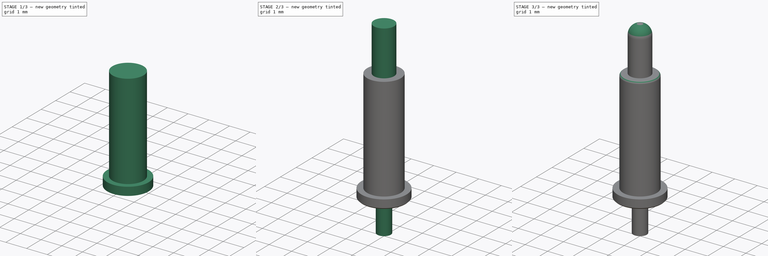
[diagram: build sequence overview — one tinted view per stage of 3, left to right]
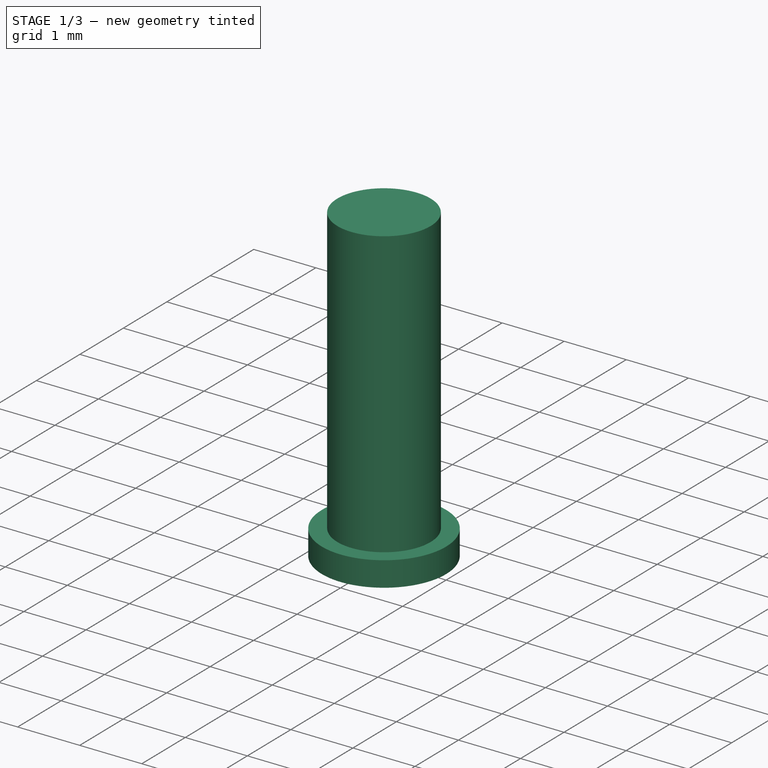
[diagram: stage 1 of 3 — iso view after this stage's code; geometry added in this stage tinted green]
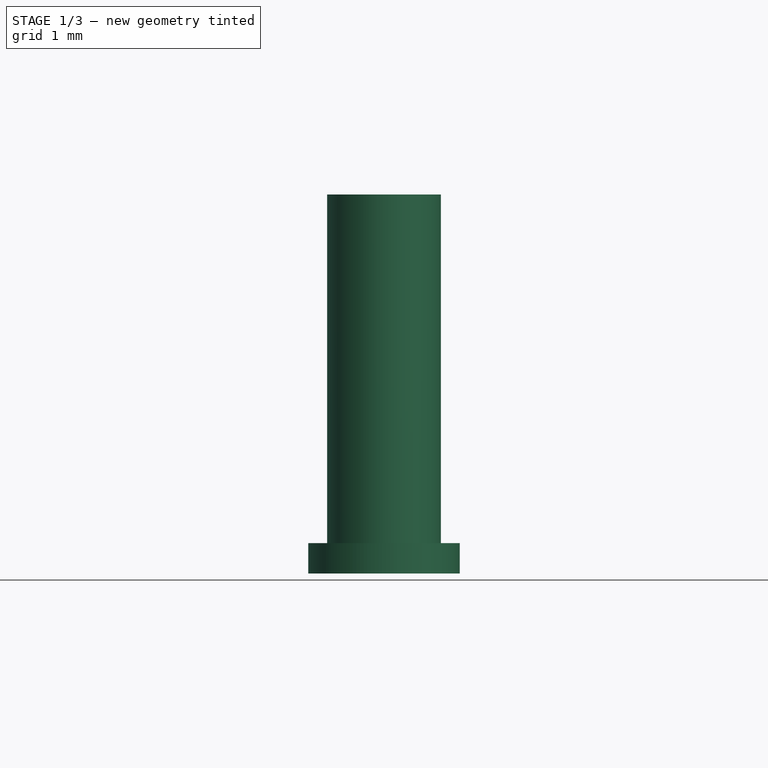
[diagram: stage 1 of 3 — front view after this stage's code; geometry added in this stage tinted green]
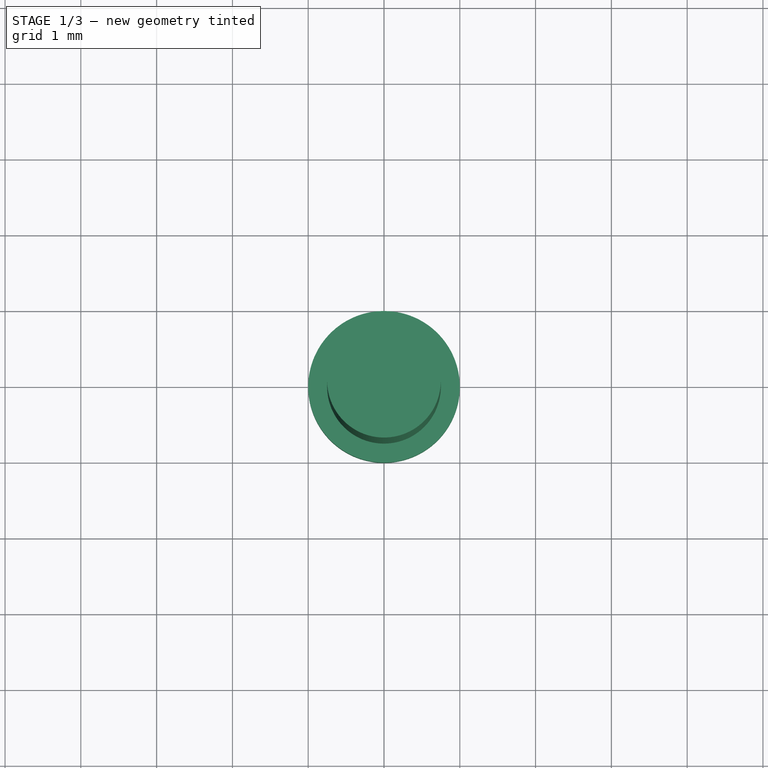
[diagram: stage 1 of 3 — top view after this stage's code; geometry added in this stage tinted green]
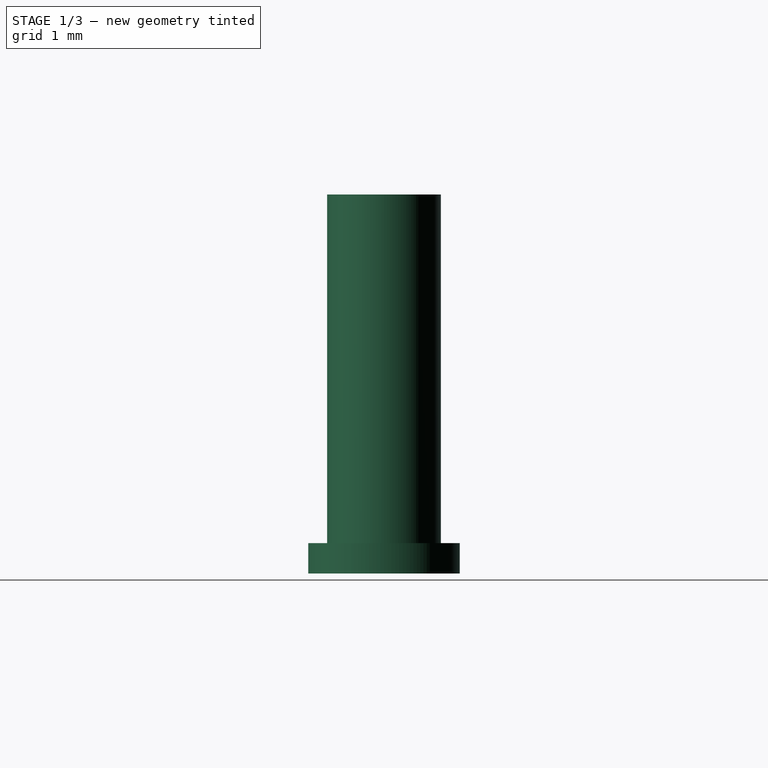
[diagram: stage 1 of 3 — right view after this stage's code; geometry added in this stage tinted green]
FCSTD DOCUMENT  (FreeCAD 0.21RUnknown)
Label: PogoPin_Xinyangze_YZ188015084P-01
License: All rights reserved
LicenseURL: http://en.wikipedia.org/wiki/All_rights_reserved
objects: Sketcher::SketchObject×4, PartDesign::Pad×4, PartDesign::Fillet×2, Spreadsheet::Sheet×1, PartDesign::Chamfer×1, PartDesign::Body×1
note: 19 computed .brp shape members not serialized (recipe doc carries the construction recipe); baked Part::Feature solids carry a one-line shape summary decoded from their .brp

FEATURE [Spreadsheet::Sheet] Spreadsheet
  cells = A1='Through hole connector diameter; B1(through_hole_diameter)==0.6 mm; I1='Legend; A2='Throuh hole connector length; B2(through_hole_length)==1.4 mm; I2='bold; J2='User input (may be changed within some limits); A3='Base diameter; B3(base_diameter)==2 mm; I3='italic; J3='Computed values (do not change); A4='Base height; B4(base_height)==0.4 mm; I4='gray background; J4='Fixed input values, e.g. dimensions of PCB & copmonents (don't change unless component was changed); A5='Pin diameter; B5(pin_diameter)==1.5 mm; A6='Pin + base height; B6(pin_and_base_height)==5 mm; A7='Pin height; B7(pin_height)==pin_and_base_height - base_height; A8='Top diameter; B8(top_diameter)==0.9 mm; A9='Full height; B9(full_height)==7 mm; A10='Top height; B10(top_height)==full_height - base_height - pin_height; A12='Total length; B12==through_hole_length + base_height + pin_height + top_height; C12='Sanity check: should be 8.4mm
FEATURE [Sketcher::SketchObject] Sketch  label="BaseSketch"
  FullyConstrained = true
  MapMode = 5
  Support = -> [XY_Plane]
  expr: Constraints[1] = Spreadsheet.base_diameter
  sketch-geometry (1):
    g0: Circle CenterX=0 CenterY=0 CenterZ=0 NormalX=0 NormalY=0 NormalZ=1 AngleXU=0 Radius=1
  constraints (2):
    c: Coincident(g0,g-1)
    c: Diameter(g0) = 2
FEATURE [PartDesign::Pad] Pad  label="PadBase"
  Direction = (0,0,1)
  Length = 0.4
  Length2 = 10
  Profile = -> Sketch
  ReferenceAxis = -> Sketch [N_Axis]
  Type = 0
  expr: Length = Spreadsheet.base_height
FEATURE [Sketcher::SketchObject] Sketch001  label="PinSketch"
  FullyConstrained = true
  MapMode = 5
  Placement = pos=(0,0,0.4) rot=(0,0,1;0rad)
  Support = -> [Pad]
  expr: Constraints[1] = Spreadsheet.pin_diameter
  sketch-geometry (1):
    g0: Circle CenterX=0 CenterY=0 CenterZ=0 NormalX=0 NormalY=0 NormalZ=1 AngleXU=0 Radius=0.75
  constraints (2):
    c: Coincident(g0,g-1)
    c: Diameter(g0) = 1.5
FEATURE [PartDesign::Pad] Pad001  label="PadPin"
  BaseFeature = -> Pad
  Direction = (0,0,1)
  Length = 4.6
  Length2 = 10
  Profile = -> Sketch001
  ReferenceAxis = -> Sketch001 [N_Axis]
  Type = 0
  expr: Length = Spreadsheet.pin_height
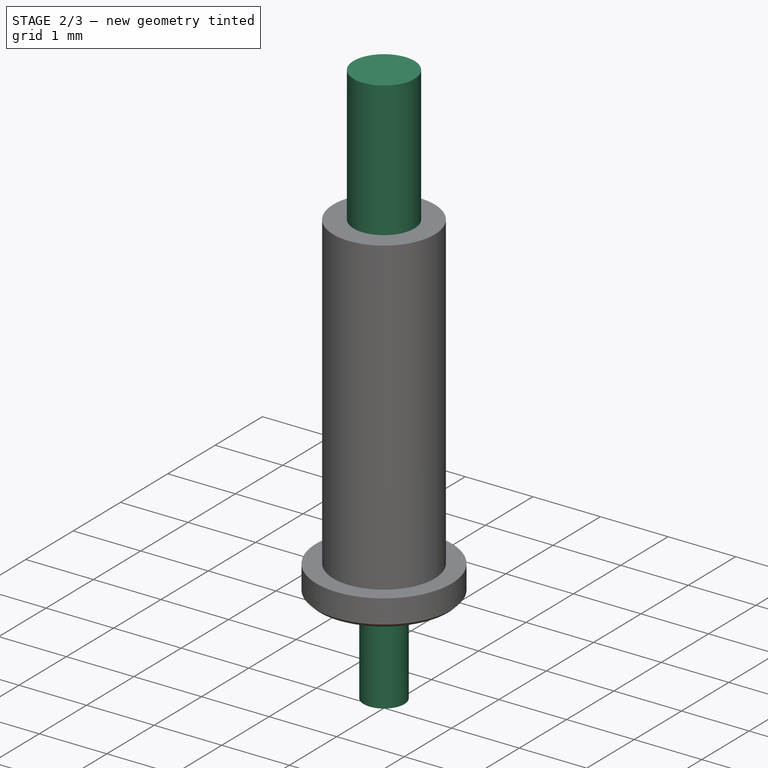
[diagram: stage 2 of 3 — iso view after this stage's code; geometry added in this stage tinted green]
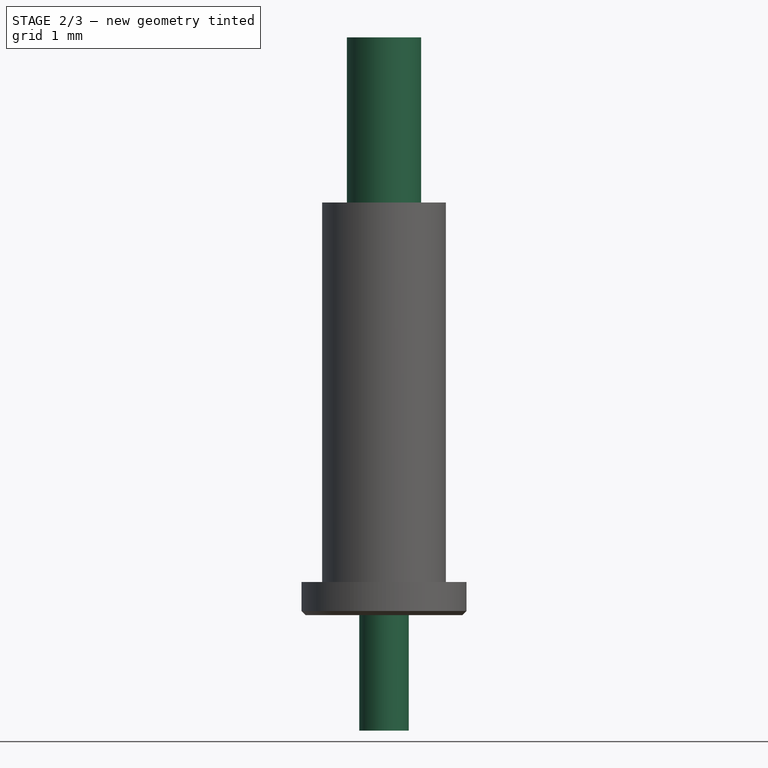
[diagram: stage 2 of 3 — front view after this stage's code; geometry added in this stage tinted green]
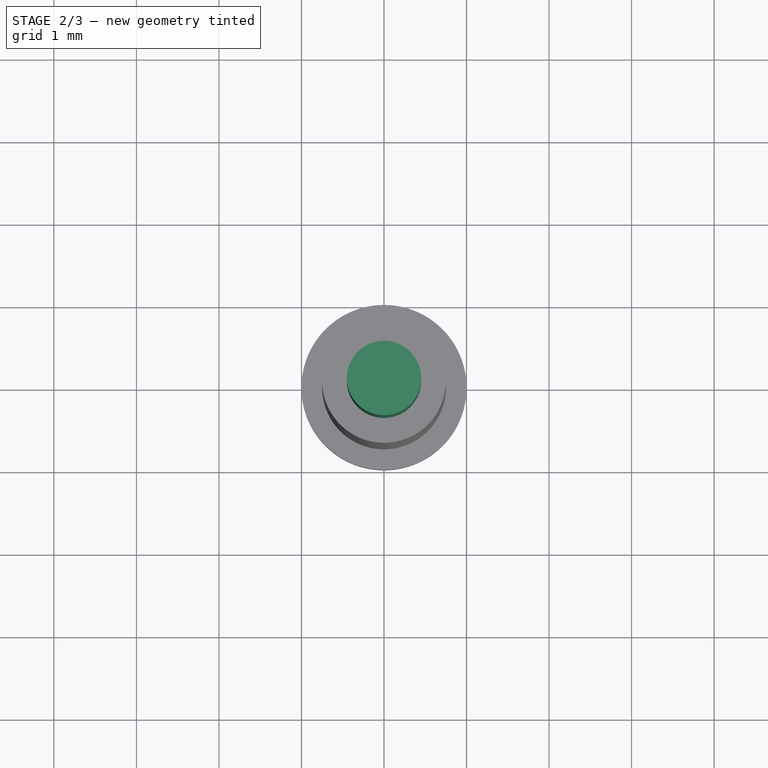
[diagram: stage 2 of 3 — top view after this stage's code; geometry added in this stage tinted green]
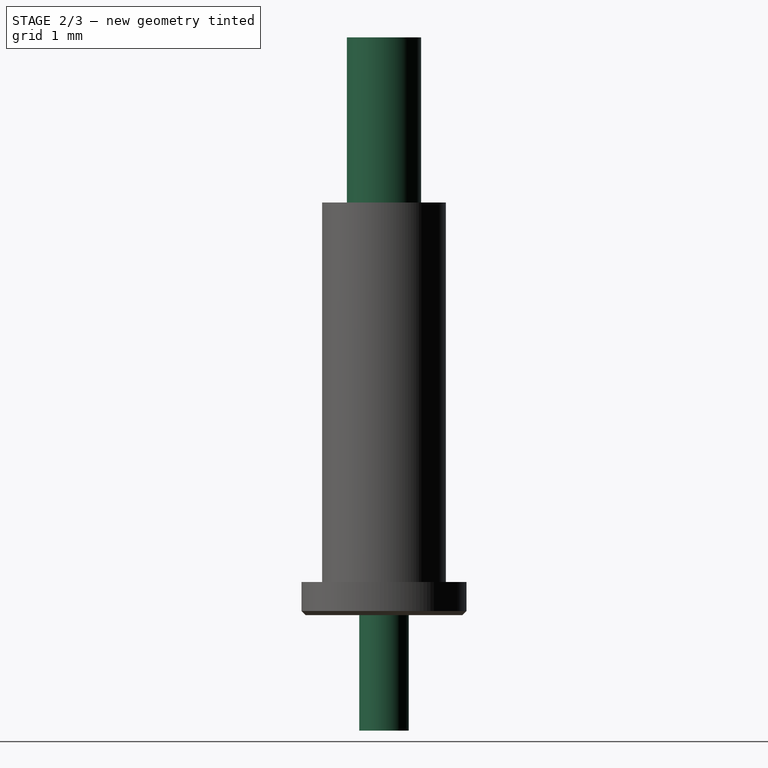
[diagram: stage 2 of 3 — right view after this stage's code; geometry added in this stage tinted green]
FEATURE [Sketcher::SketchObject] Sketch002  label="TopSketch"
  FullyConstrained = true
  MapMode = 5
  Placement = pos=(0,0,5) rot=(0,0,1;0rad)
  Support = -> [Pad001]
  expr: Constraints[1] = Spreadsheet.top_diameter
  sketch-geometry (1):
    g0: Circle CenterX=0 CenterY=0 CenterZ=0 NormalX=0 NormalY=0 NormalZ=1 AngleXU=0 Radius=0.45
  constraints (2):
    c: Coincident(g0,g-1)
    c: Diameter(g0) = 0.9
FEATURE [PartDesign::Pad] Pad002  label="PadTop"
  BaseFeature = -> Pad001
  Direction = (0,0,1)
  Length = 2
  Length2 = 10
  Profile = -> Sketch002
  ReferenceAxis = -> Sketch002 [N_Axis]
  Type = 0
  expr: Length = Spreadsheet.top_height
FEATURE [Sketcher::SketchObject] Sketch003  label="ThroughHolePinSketch"
  FullyConstrained = true
  MapMode = 5
  Placement = pos=(0,0,0) rot=(1,0,0;3.14159rad)
  Support = -> [Pad002]
  expr: Constraints[1] = Spreadsheet.through_hole_diameter
  sketch-geometry (1):
    g0: Circle CenterX=0 CenterY=0 CenterZ=0 NormalX=0 NormalY=0 NormalZ=1 AngleXU=0 Radius=0.3
  constraints (2):
    c: Coincident(g0,g-1)
    c: Diameter(g0) = 0.6
FEATURE [PartDesign::Pad] Pad003  label="PadThroughHolePin"
  BaseFeature = -> Pad002
  Direction = (0,0,-1)
  Length = 1.4
  Length2 = 10
  Profile = -> Sketch003
  ReferenceAxis = -> Sketch003 [N_Axis]
  Type = 0
  expr: Length = Spreadsheet.through_hole_length
FEATURE [PartDesign::Chamfer] Chamfer  label="ChamferBase"
  Angle = 45
  Base = -> Pad003 [Edge2]
  BaseFeature = -> Pad003
  ChamferType = 0
  FlipDirection = false
  Size = 0.05
  Size2 = 1
  SupportTransform = false
  UseAllEdges = false
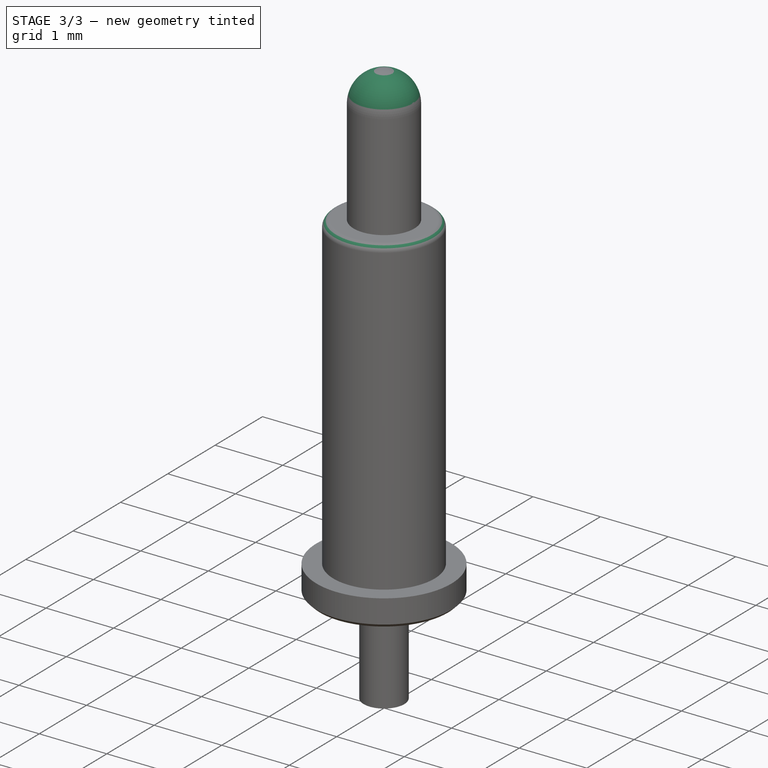
[diagram: stage 3 of 3 — iso view after this stage's code; geometry added in this stage tinted green]
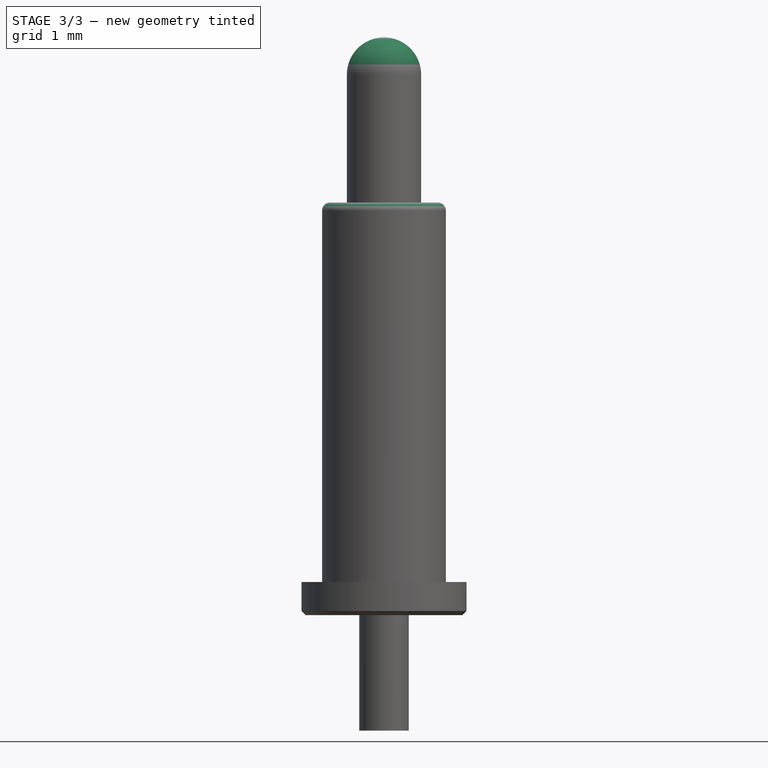
[diagram: stage 3 of 3 — front view after this stage's code; geometry added in this stage tinted green]
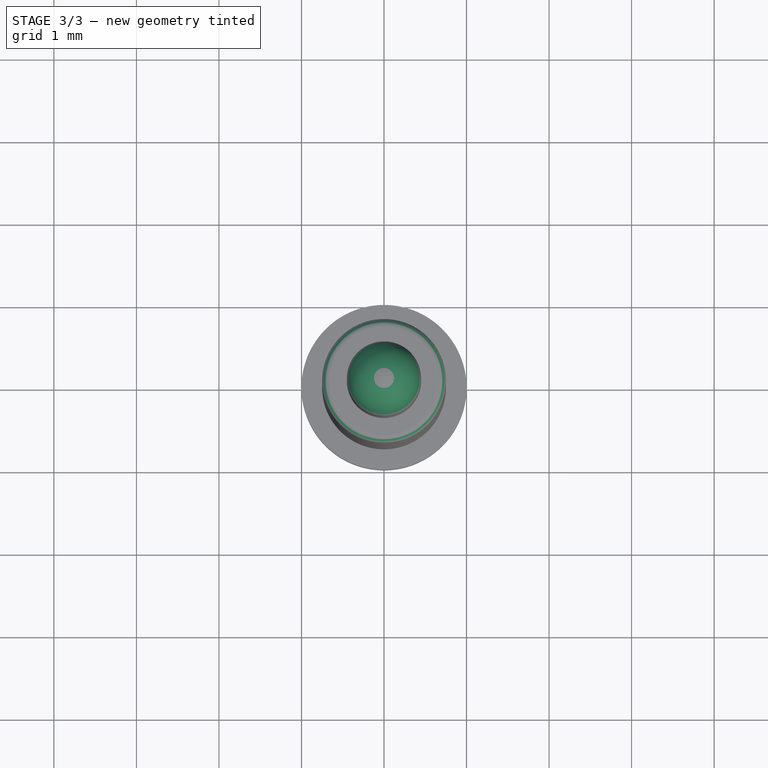
[diagram: stage 3 of 3 — top view after this stage's code; geometry added in this stage tinted green]
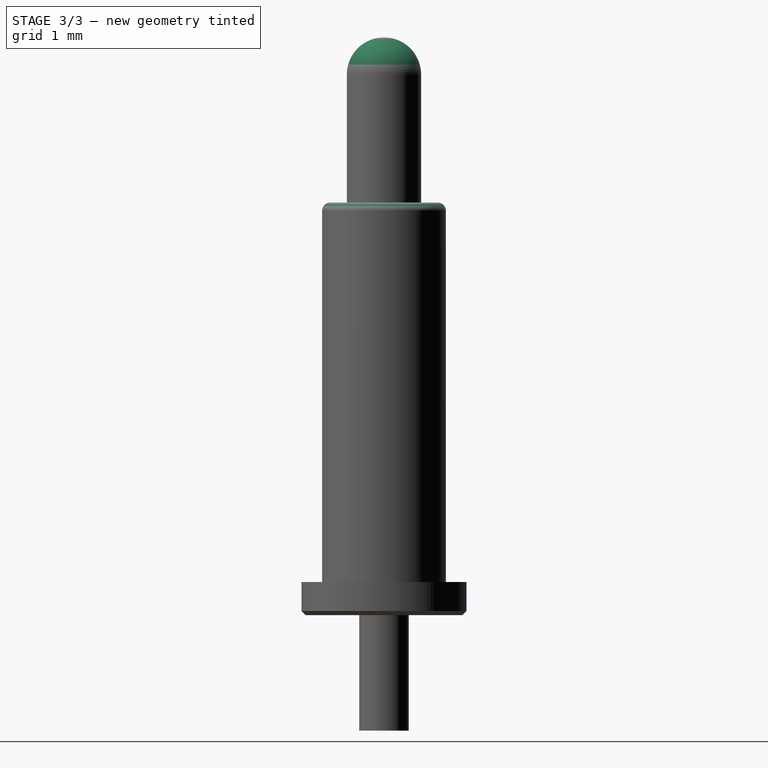
[diagram: stage 3 of 3 — right view after this stage's code; geometry added in this stage tinted green]
FEATURE [PartDesign::Fillet] Fillet  label="FilletPin"
  Base = -> Chamfer [Edge9]
  BaseFeature = -> Chamfer
  Radius = 0.1
  SupportTransform = false
  UseAllEdges = false
FEATURE [PartDesign::Fillet] Fillet001  label="FilletTop"
  Base = -> Fillet [Edge11]
  BaseFeature = -> Fillet
  Radius = 0.45
  SupportTransform = false
  UseAllEdges = false
  expr: Radius = Spreadsheet.top_diameter / 2
FEATURE [PartDesign::Body] Body
  Group = -> [Sketch,Pad,Sketch001,Pad001,Sketch002,Pad002,Sketch003,Pad003,Chamfer,Fillet,Fillet001]
  Origin = -> Origin
  Tip = -> Fillet001
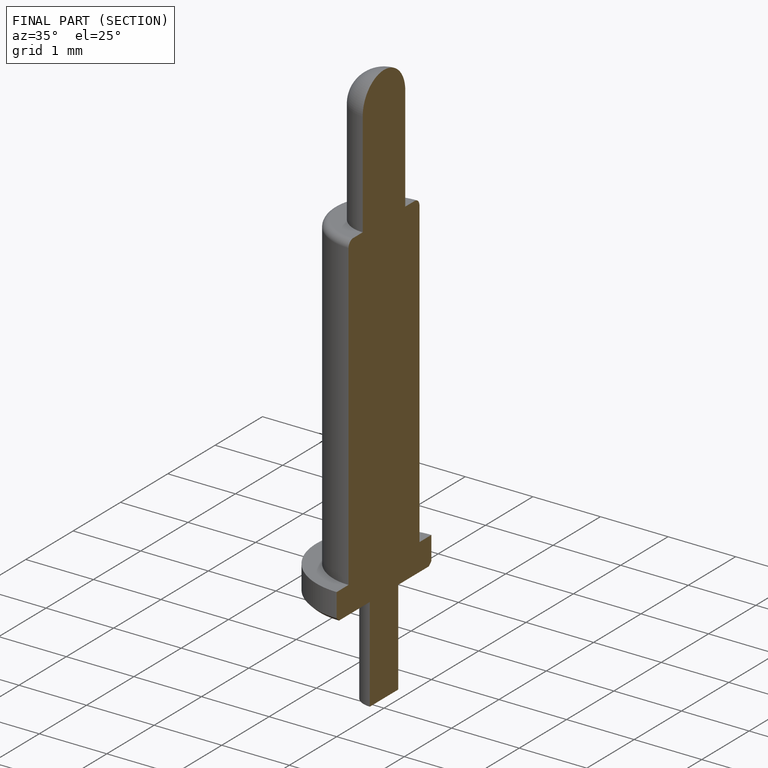
[diagram: finished part — half-section view (interior)]
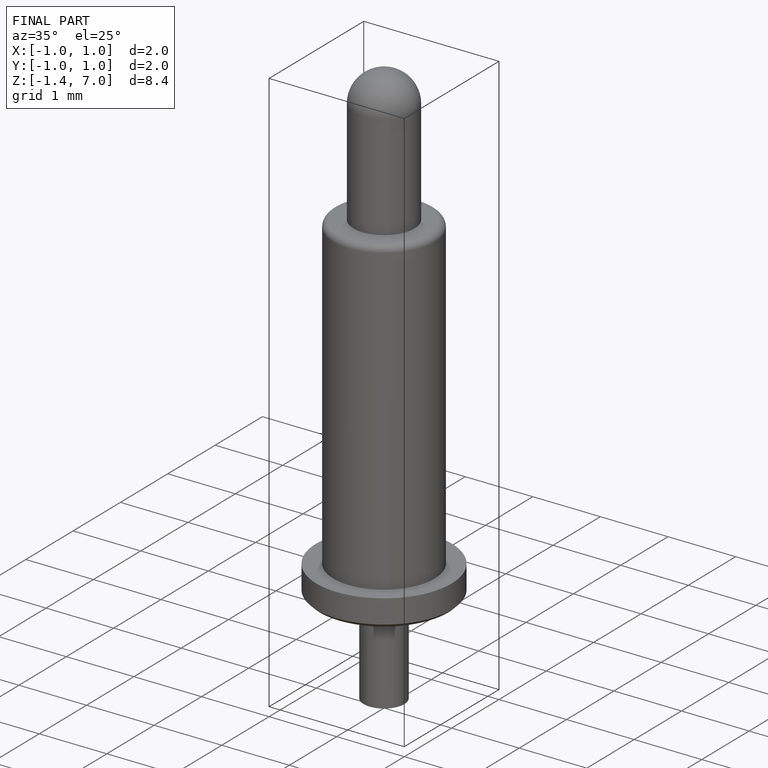
[diagram: finished part — iso view with bounding-box wireframe]
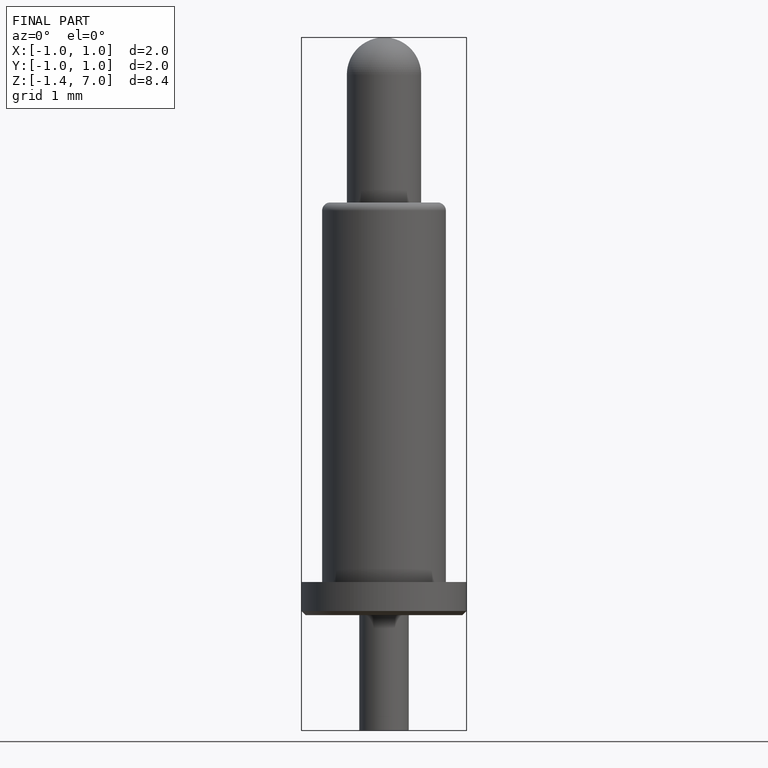
[diagram: finished part — front view with bounding-box wireframe]
